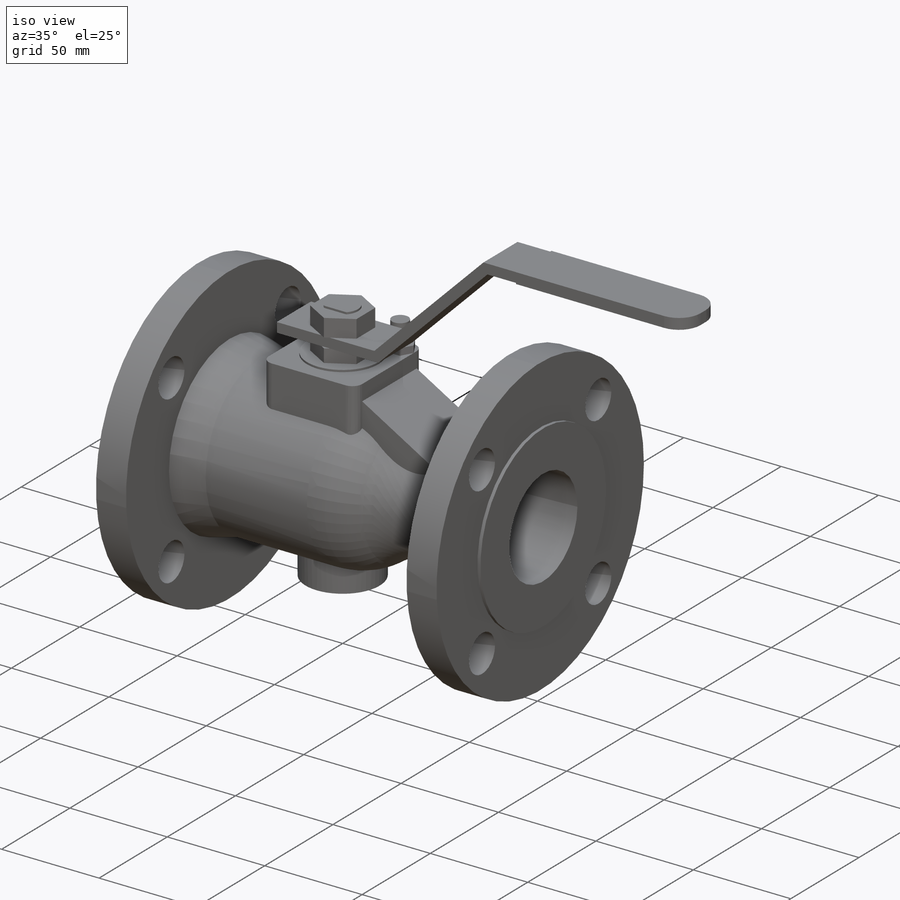
[diagram: iso view]
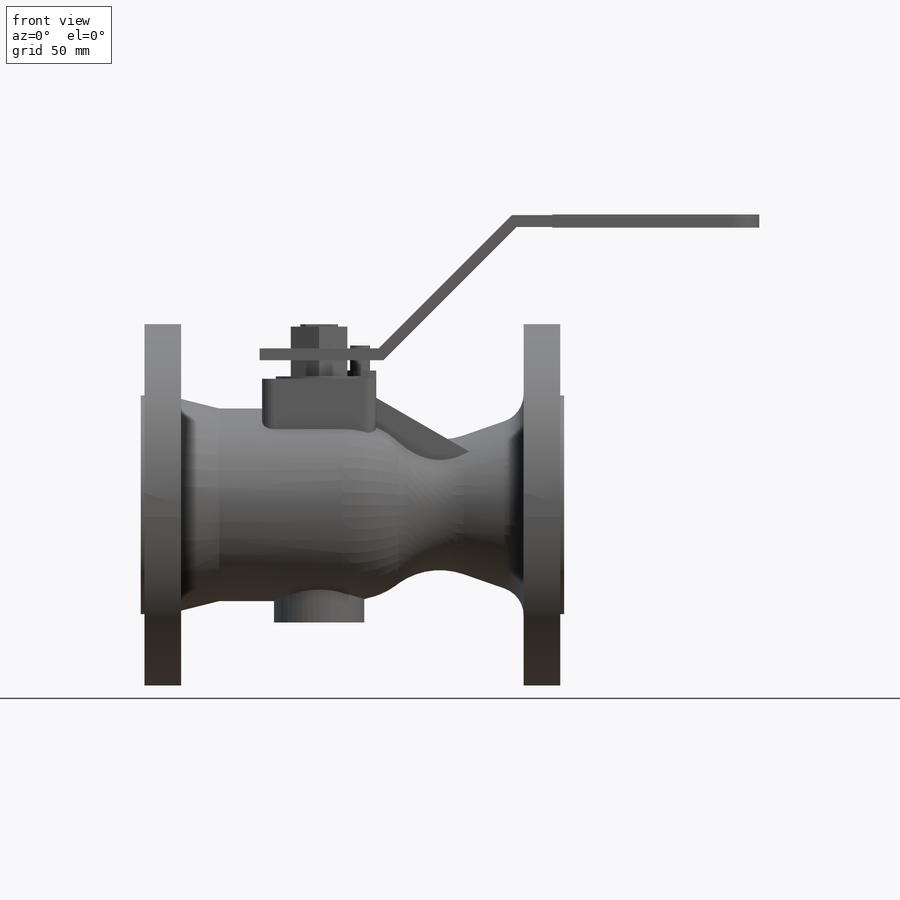
[diagram: front view]
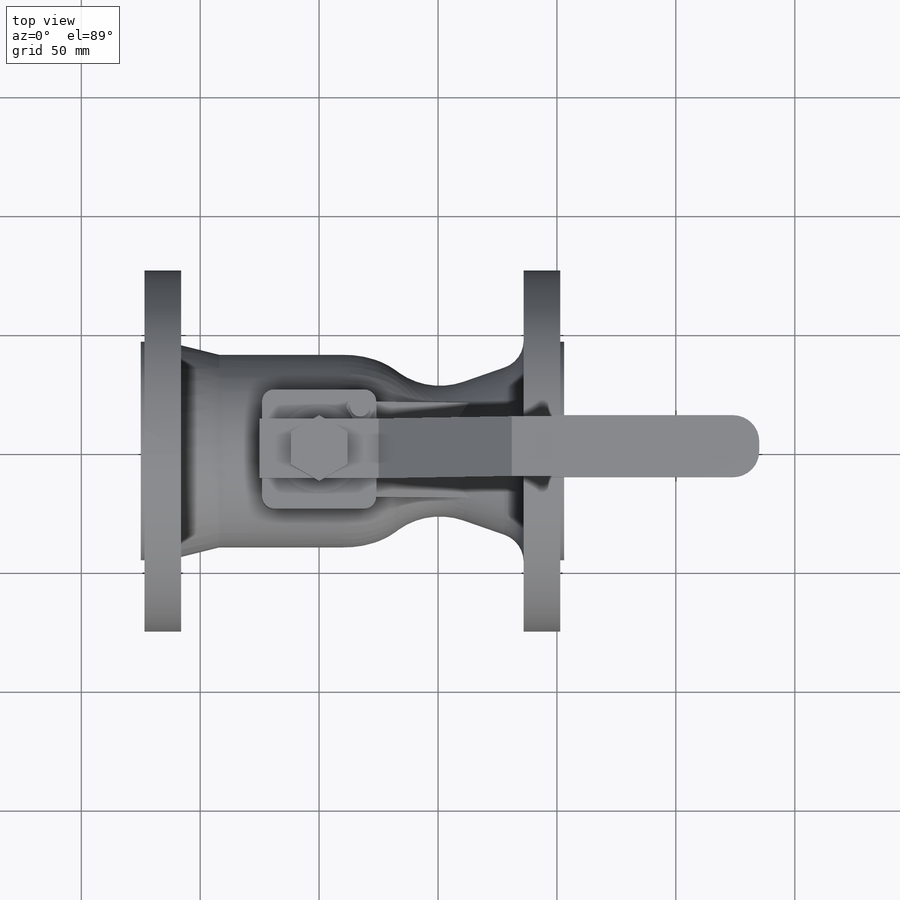
[diagram: top view]
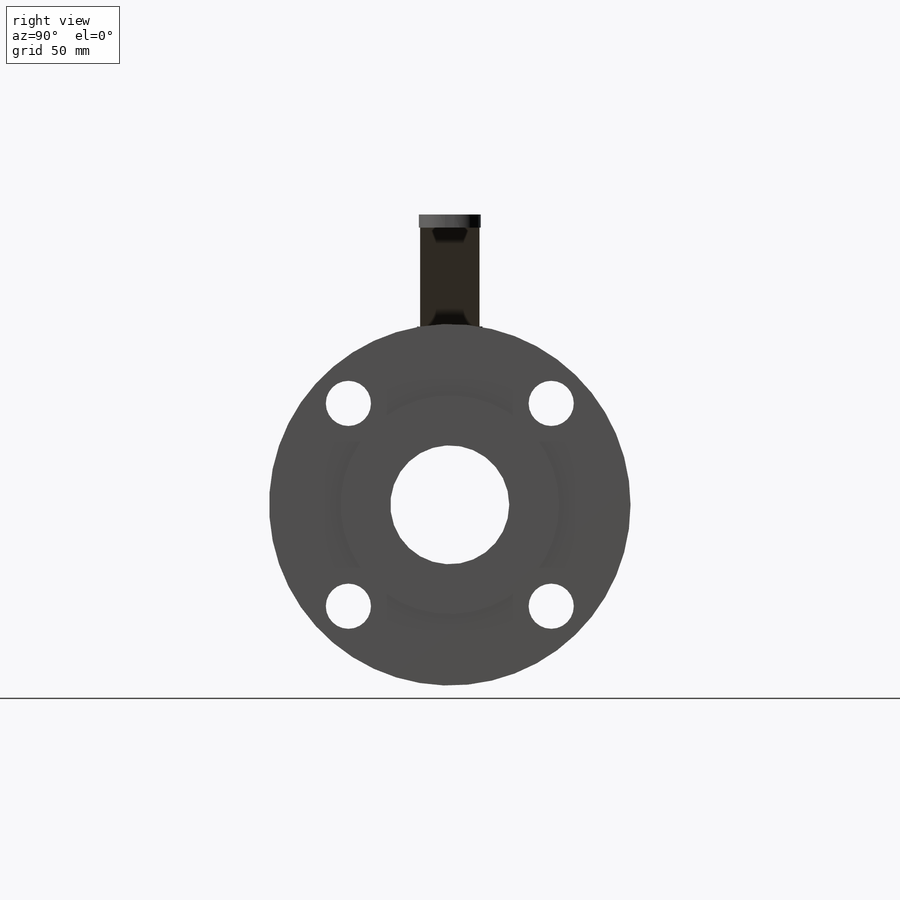
[diagram: right view]
SOLIDWORKS PART (.sldprt)
format: sldprt  version: not decoded by parser v0  size: 531,456 bytes
history: native  units: mm
features: sketch x15, extrude x10, plane x3, cut_extrude x3, material x1, revolve x1, fillet x1 (+10 scaffold rows collapsed)
feature tree (44):
  scaffold x10  (default folders/planes/origin — collapsed)
  material  "Material <not specified>"
  plane  "Alzado"
  plane  "Planta"
  plane  "Vista lateral"
  sketch  "Sketch1"  dims[D1=0.0mm]
  revolve  "Revolve1"  Angle=360deg
  sketch  "Sketch2"
  cut_extrude  "Cut-Extrude1"  Depth=1mm
  sketch  "Sketch3"  dims[D1=0.0mm]
  extrude  "Boss-Extrude1"  Depth=49.5mm
  sketch  "Sketch4"  dims[D1=0.0mm]
  extrude  "Boss-Extrude2"  Depth=53mm
  sketch  "Sketch5"  dims[D1=0.0mm]
  extrude  "Boss-Extrude3"  Depth=3.5mm
  sketch  "Sketch6"  dims[D1=~8.362171mm]
  extrude  "Boss-Extrude4"  Depth=10.5mm
  sketch  "Sketch7"  dims[D1=0.0mm]
  extrude  "Boss-Extrude5"  Depth=20mm
  sketch  "Sketch8"  dims[D1=~29.092081mm]
  extrude  "Boss-Extrude6"  Depth=1mm
  sketch  "Sketch9"  dims[D1=0.0mm]
  extrude  "Boss-Extrude7"  Depth=20.9mm
  sketch  "Sketch10"  dims[D1=0.0mm]
  extrude  "Boss-Extrude8"  Depth=1mm
  sketch  "Sketch11"  dims[D1=0.0mm]
  extrude  "Boss-Extrude9"  Depth=13mm
  sketch  "Sketch12"  dims[D1=0.0mm]
  extrude  "Boss-Extrude10"  Depth=12.5mm
  sketch  "Sketch13"  dims[c1.D1=~10.228219mm c1.D2=~56.244922mm c2.D1=5.0mm c2.D2=~19.440159mm c3.D1=~12.240572mm c3.D2=~20.913301mm]
  cut_extrude  "Cut-Extrude2"  Depth=33.5mm
  sketch  "Sketch14"  dims[c1.D1=~103.000001mm c1.Diameter=50.8mm c1.Width=0.0 c1.Depth=0.0 c1.StubLength=0.0mm c2.Diameter=50.8mm c2.Width=0.0 c2.Depth=0.0 c2.StubLength=0.0mm]
  fillet  "Fillet1"  Radius=11mm
  sketch  "Sketch15"
  cut_extrude  "Cut-Extrude3"  [1 undecoded]
decode coverage: 27 of 30 modeling features carry decoded parameters
note: ~ marks probable driven/reference dimensions
note: 1 parameter value undecoded
note: suppression state not decoded; provenance and decode notes live in map.json
